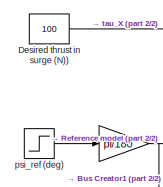
[diagram: root canvas - part 1/2, top left region]
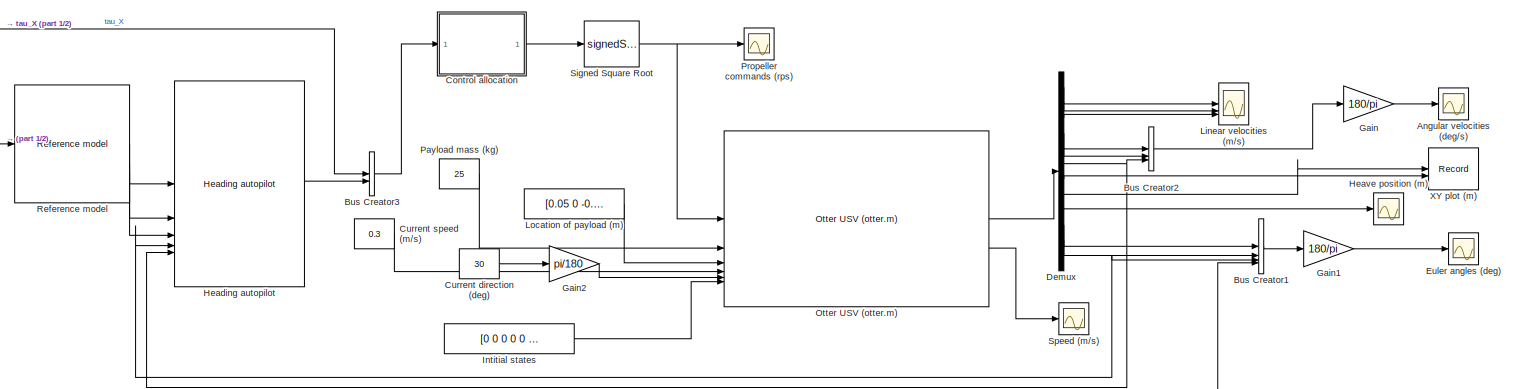
[diagram: root canvas - part 2/2, most of the canvas]
MODEL slx_18ba281a9563
KIND model
CONFIG AbsTol = auto
CONFIG EnableMultiTasking = off
CONFIG FixedStep = 0.02
CONFIG MaxStep = auto
CONFIG MinStep = auto
CONFIG RelTol = 1e-3
CONFIG SampleTimeConstraint = Unconstrained
CONFIG SolverName = ode4
CONFIG StartTime = 0.0
CONFIG StopTime = 60
BLOCK [Gain]  
  Gain = pi/180
BLOCK [Scope] Angular velocities (deg//s)
  Floating = off
  NumInputPorts = 1
  ScopeSpecificationString = Simulink.scopes.TimeScopeBlockCfg('CurrentConfiguration', extmgr.ConfigurationSet(extmgr.Configuration('Core','General UI',true),extmgr.Configuration('Core','Source UI',true),extmgr.Configuration('Sources','WiredSimulink',true,'DataLoggingVariableName','ScopeData3'),extmgr.Configuration('Visuals','Time Domain',true,'SerializedDisplays',{struct('MinYLimReal','-4.70367','MaxYLimReal','4.06163','YLab...<+1546ch>
BLOCK [BusCreator] Bus Creator1
  DisplayOption = bar
  InheritFromInputs = on
  Inputs = 4
BLOCK [BusCreator] Bus Creator2
  DisplayOption = bar
  InheritFromInputs = on
  Inputs = 3
BLOCK [BusCreator] Bus Creator3
  DisplayOption = bar
  InheritFromInputs = on
  Inputs = 2
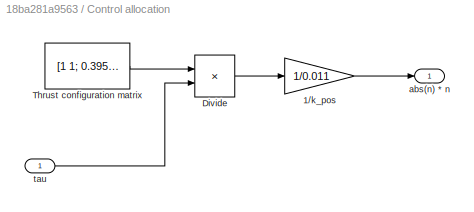
BLOCK [SubSystem] Control allocation
BLOCK [Gain] Control allocation/1//k_pos
  Gain = 1/0.011
BLOCK [Product] Control allocation/Divide
  Inputs = /*
  Multiplication = Matrix(*)
BLOCK [Constant] Control allocation/Thrust configuration matrix
  Value = [1 1; 0.395 -0.395]
BLOCK [Outport] Control allocation/abs(n) * n
BLOCK [Inport] Control allocation/tau
BLOCK [Constant] Current direction (deg)
  Value = 30
BLOCK [Constant] Current speed (m//s)
  Value = 0.3
BLOCK [Demux] Demux
  Outputs = 12
BLOCK [Constant] Desired thrust in surge (N))
  Value = 100
BLOCK [Scope] Euler angles (deg)
  Floating = off
  NumInputPorts = 1
  ScopeSpecificationString = Simulink.scopes.TimeScopeBlockCfg('CurrentConfiguration', extmgr.ConfigurationSet(extmgr.Configuration('Core','General UI',true),extmgr.Configuration('Core','Source UI',true),extmgr.Configuration('Sources','WiredSimulink',true,'DataLoggingVariableName','ScopeData1'),extmgr.Configuration('Visuals','Time Domain',true,'SerializedDisplays',{struct('MinYLimReal','-4.51265','MaxYLimReal','22.72363','YLa...<+1661ch>
BLOCK [Gain] Gain
  Gain = 180/pi
BLOCK [Gain] Gain1
  Gain = 180/pi
BLOCK [Gain] Gain2
  Gain = pi/180
BLOCK [Reference] Heading autopilot   REF=mssSimulink/Control/Autopilots/Heading autopilot
  SourceBlock = mssSimulink/Control/Autopilots/Heading autopilot
  SourceType = Course Autopilot
BLOCK [Scope] Heave position (m)
  Floating = off
  NumInputPorts = 1
  ScopeSpecificationString = Simulink.scopes.TimeScopeBlockCfg('CurrentConfiguration', extmgr.ConfigurationSet(extmgr.Configuration('Core','General UI',true),extmgr.Configuration('Core','Source UI',true),extmgr.Configuration('Sources','WiredSimulink',true,'DataLoggingVariableName','ScopeData4'),extmgr.Configuration('Visuals','Time Domain',true,'SerializedDisplays',{struct('MinYLimReal','-0.00573','MaxYLimReal','0.05153','YLab...<+1629ch>
BLOCK [Constant] Intitial states
  Value = [0 0 0 0 0 0 0 0 0 0 0 0]
BLOCK [Scope] Linear velocities (m//s)
  Floating = off
  NumInputPorts = 3
  ScopeSpecificationString = Simulink.scopes.TimeScopeBlockCfg('CurrentConfiguration', extmgr.ConfigurationSet(extmgr.Configuration('Core','General UI',true),extmgr.Configuration('Core','Source UI',true),extmgr.Configuration('Sources','WiredSimulink',true,'DataLoggingVariableName','ScopeData2'),extmgr.Configuration('Visuals','Time Domain',true,'SerializedDisplays',{struct('MinYLimReal','-0.24209','MaxYLimReal','1.79827','YLab...<+1919ch>
BLOCK [Constant] Location of payload (m)
  Value = [0.05 0 -0.35]
BLOCK [Reference] Otter USV (otter.m)   REF=mssSimulink/Marine craft models/Otter USV (otter.m)
  SourceBlock = mssSimulink/Marine craft models/Otter USV (otter.m)
BLOCK [Constant] Payload mass (kg)
  Value = 25
BLOCK [Scope] Propeller commands (rps)
  Floating = off
  NumInputPorts = 1
  ScopeSpecificationString = Simulink.scopes.TimeScopeBlockCfg('CurrentConfiguration', extmgr.ConfigurationSet(extmgr.Configuration('Core','General UI',true),extmgr.Configuration('Core','Source UI',true),extmgr.Configuration('Sources','WiredSimulink',true,'DataLoggingVariableName','ScopeData1'),extmgr.Configuration('Visuals','Time Domain',true,'SerializedDisplays',{struct('MinYLimReal','63.39851','MaxYLimReal','71.29346','YLa...<+1551ch>
BLOCK [Reference] Reference model  REF=mssSimulink/Guidance/Reference model
  SourceBlock = mssSimulink/Guidance/Reference model
  SourceType = 3rd-order reference model
BLOCK [Sqrt] Signed Square Root
  Operator = signedSqrt
BLOCK [Scope] Speed (m//s)
  Floating = off
  NumInputPorts = 1
  ScopeSpecificationString = Simulink.scopes.TimeScopeBlockCfg('CurrentConfiguration', extmgr.ConfigurationSet(extmgr.Configuration('Core','General UI',true),extmgr.Configuration('Core','Source UI',true),extmgr.Configuration('Sources','WiredSimulink',true),extmgr.Configuration('Visuals','Time Domain',true,'SerializedDisplays',{struct('MinYLimReal','-0.2114','MaxYLimReal','1.90264','YLabelReal','','MinYLimMag','0.00000','MaxYL...<+1368ch>
BLOCK [Record] XY plot (m)
  CompatibilityTag = XY
  FileSettingsInternal = {"entries":[{"content":{"excelSettings":{"content":{},"type":"Streamout.ExcelSettings"}},"type":"Streamout.FileSettingStorage","uuid":""}],"packageUris":["http:\/\/schema.mathworks.com\/mf0\/streamout_blocks\/R2020a"],"version":"1.0"}
  Layout = [1 1]
  SignalsInternal = {"entries":[{"content":{"signals":[{"content":{"blockPath":[],"dimensions":[1],"domain":"","lineColor":"#a2142f","plots":[ 1 ],"port":1,"sid":[""],"signalID":1,"signalName":"Demux:8"},"type":"RecordBlkView.Signal","uuid":""},{"content":{"blockPath":[],"dimensions":[1],"domain":"","lineColor":"#139fff","plots":[ 1 ],"port":2,"sid":[""],"signalID":2,"signalName":"Demux:7"},"type":"RecordBlkView.Sign...<+160ch>
  VisualizationBindings = {"xyplotplugin":{"info":[{"series":[{"bindingParametersList":[{"parameter":"X-Axis","signalID":1,"signalName":"Demux:8"},{"parameter":"Y-Axis","signalID":2,"signalName":"Demux:7"}],"seriesID":0}],"subplotID":1}]}}
  st = -1
BLOCK [Step] psi_ref (deg)
  After = 0
  Before = 20
  Time = 30
NET  :1 -> Bus Creator1:4, Reference model:1
LINE Bus Creator1:1 -> Gain1:1
LINE Bus Creator2:1 -> Gain:1
LINE Bus Creator3:1 -> Control allocation:1
LINE Control allocation/1//k_pos:1 -> Control allocation/abs(n) * n:1
LINE Control allocation/Divide:1 -> Control allocation/1//k_pos:1
LINE Control allocation/Thrust configuration matrix:1 -> Control allocation/Divide:1
LINE Control allocation/tau:1 -> Control allocation/Divide:2
LINE Control allocation:1 -> Signed Square Root:1
LINE Current direction (deg):1 -> Gain2:1
LINE Current speed (m//s):1 -> Otter USV (otter.m) :4
LINE Demux:1 -> Linear velocities (m//s):1
LINE Demux:10 -> Bus Creator1:1
LINE Demux:11 -> Bus Creator1:2
NET Demux:12 -> Bus Creator1:3, Heading autopilot :4
LINE Demux:2 -> Linear velocities (m//s):2
LINE Demux:3 -> Linear velocities (m//s):3
LINE Demux:4 -> Bus Creator2:1
LINE Demux:5 -> Bus Creator2:2
NET Demux:6 -> Bus Creator2:3, Heading autopilot :5
LINE Demux:7 -> XY plot (m):2
LINE Demux:8 -> XY plot (m):1
LINE Demux:9 -> Heave position (m):1
LINE Desired thrust in surge (N)):1 -> Bus Creator3:1
LINE Gain1:1 -> Euler angles (deg):1
LINE Gain2:1 -> Otter USV (otter.m) :5
LINE Gain:1 -> Angular velocities (deg//s):1
LINE Heading autopilot :1 -> Bus Creator3:2
LINE Intitial states:1 -> Otter USV (otter.m) :6
LINE Location of payload (m):1 -> Otter USV (otter.m) :3
LINE Otter USV (otter.m) :1 -> Demux:1
LINE Otter USV (otter.m) :2 -> Speed (m//s):1
LINE Payload mass (kg):1 -> Otter USV (otter.m) :2
LINE Reference model:1 -> Heading autopilot :1
LINE Reference model:2 -> Heading autopilot :2
LINE Reference model:3 -> Heading autopilot :3
NET Signed Square Root:1 -> Otter USV (otter.m) :1, Propeller commands (rps):1
LINE psi_ref (deg):1 ->  :1
note: NET lines group one-source signal fan-out (src -> all destinations, sorted); 1:1 wires keep LINE
